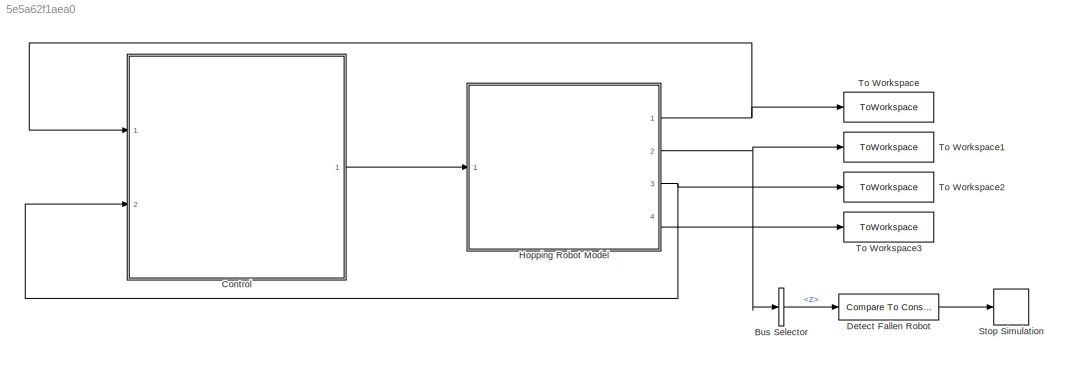
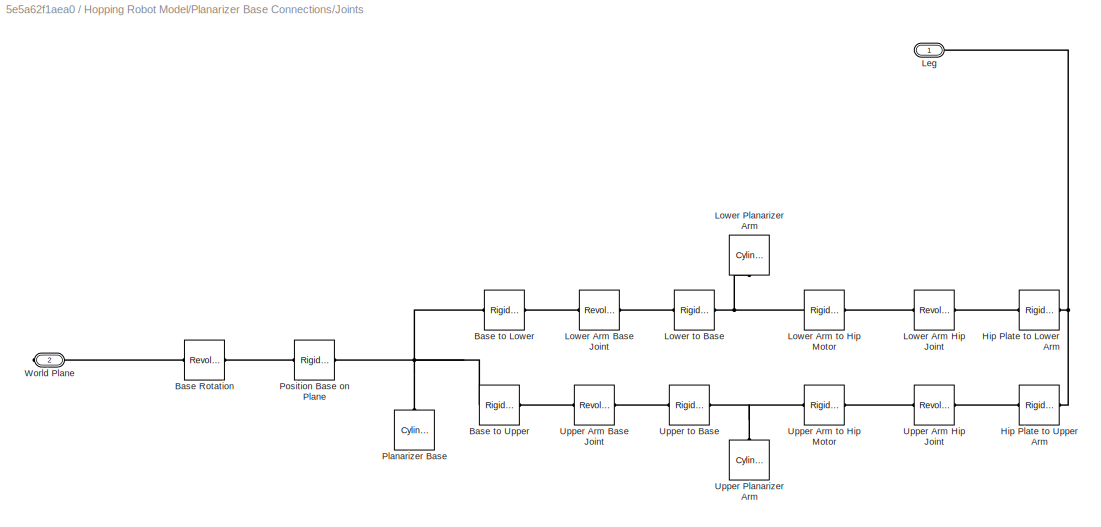
MODEL slx_5e5a62f1aea0
KIND model
CONFIG AbsTol = auto
CONFIG EnableMultiTasking = off
CONFIG FixedStep = auto
CONFIG MaxStep = 1E-5
CONFIG MinStep = auto
CONFIG RelTol = 1e-9
CONFIG SampleTimeConstraint = Unconstrained
CONFIG SolverName = VariableStepAuto
CONFIG StartTime = 0.0
CONFIG StopTime = 3
BLOCK [BusSelector] Bus Selector
  OutputSignals = Z
  Ports = [1, 1]
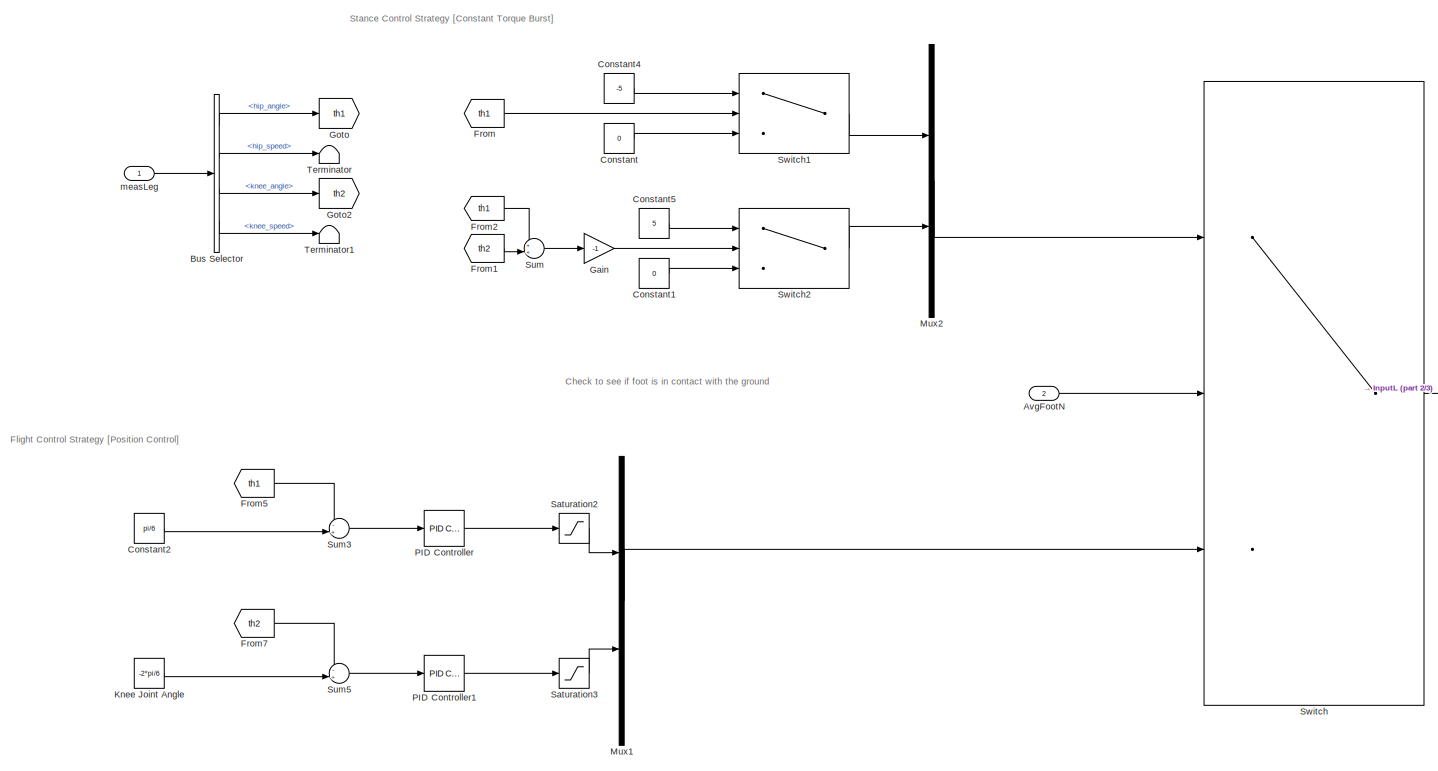
[diagram: Control - part 1/3, center side, full height]
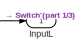
[diagram: Control - part 2/3, middle right region]
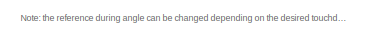
[diagram: Control - part 3/3, bottom left region]
BLOCK [SubSystem] Control
  Ports = [2, 1]
  RequestExecContextInheritance = off
BLOCK [Inport] Control/AvgFootN
  Port = 2
BLOCK [BusSelector] Control/Bus Selector
  OutputSignals = hip_angle,hip_speed,knee_angle,knee_speed
  Ports = [1, 4]
BLOCK [Constant] Control/Constant
  Value = 0
BLOCK [Constant] Control/Constant1
  Value = 0
BLOCK [Constant] Control/Constant2
  Value = pi/6
BLOCK [Constant] Control/Constant4
  Value = -5
BLOCK [Constant] Control/Constant5
  Value = 5
BLOCK [From] Control/From
  GotoTag = th1
BLOCK [From] Control/From1
  GotoTag = th2
BLOCK [From] Control/From2
  GotoTag = th1
BLOCK [From] Control/From5
  GotoTag = th1
BLOCK [From] Control/From7
  GotoTag = th2
BLOCK [Gain] Control/Gain
  Gain = -1
BLOCK [Goto] Control/Goto
  GotoTag = th1
BLOCK [Goto] Control/Goto2
  GotoTag = th2
BLOCK [Outport] Control/InputL
BLOCK [Constant] Control/Knee Joint Angle
  Value = -2*pi/6
BLOCK [Mux] Control/Mux1
  DisplayOption = bar
  Inputs = 2
  Ports = [2, 1]
BLOCK [Mux] Control/Mux2
  DisplayOption = bar
  Inputs = 2
  Ports = [2, 1]
BLOCK [Reference] Control/PID Controller  REF=slpidlib/PID Controller
  Ports = [1, 1]
  SourceBlock = slpidlib/PID Controller
  SourceProductBaseCode = SL
  SourceType = PID 1dof
BLOCK [Reference] Control/PID Controller1  REF=slpidlib/PID Controller
  Ports = [1, 1]
  SourceBlock = slpidlib/PID Controller
  SourceProductBaseCode = SL
  SourceType = PID 1dof
BLOCK [Saturate] Control/Saturation2
  LowerLimit = -5
  UpperLimit = 5
BLOCK [Saturate] Control/Saturation3
  LowerLimit = -5
  UpperLimit = 5
BLOCK [Sum] Control/Sum
  Inputs = ++|
  Ports = [2, 1]
BLOCK [Sum] Control/Sum3
  Inputs = -+|
  Ports = [2, 1]
BLOCK [Sum] Control/Sum5
  Inputs = -+|
  Ports = [2, 1]
BLOCK [Switch] Control/Switch
  Criteria = u2 > Threshold
  InputSameDT = off
  SaturateOnIntegerOverflow = off
BLOCK [Switch] Control/Switch1
  Criteria = u2 > Threshold
  InputSameDT = off
  SaturateOnIntegerOverflow = off
  Threshold = .453
BLOCK [Switch] Control/Switch2
  Criteria = u2 > Threshold
  InputSameDT = off
  SaturateOnIntegerOverflow = off
  Threshold = .453
BLOCK [Terminator] Control/Terminator
BLOCK [Terminator] Control/Terminator1
BLOCK [Inport] Control/measLeg
BLOCK [Reference] Detect Fallen Robot  REF=simulink/Logic and Bit
Operations/Compare
To Constant
  Ports = [1, 1]
  SourceBlock = simulink/Logic and Bit\nOperations/Compare\nTo Constant
  SourceProductBaseCode = SL
  SourceType = Compare To Constant
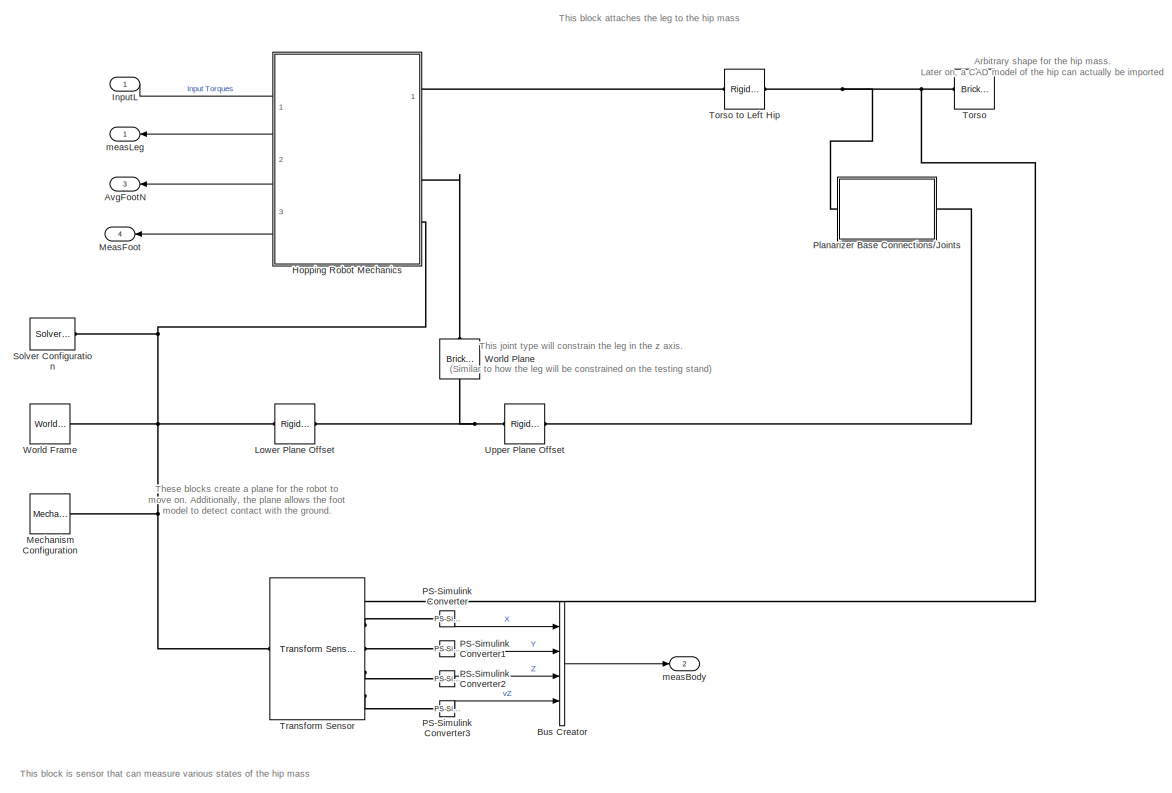
[diagram: Hopping Robot Model - part 1/2, center side, full height]
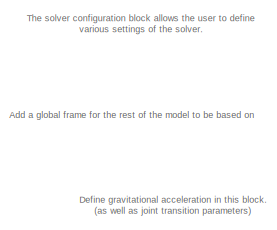
[diagram: Hopping Robot Model - part 2/2, middle left region]
BLOCK [SubSystem] Hopping Robot Model
  Ports = [1, 4]
  RequestExecContextInheritance = off
BLOCK [Outport] Hopping Robot Model/AvgFootN
  Port = 3
BLOCK [BusCreator] Hopping Robot Model/Bus Creator
  DisplayOption = bar
  InheritFromInputs = on
  Inputs = 4
  Ports = [4, 1]
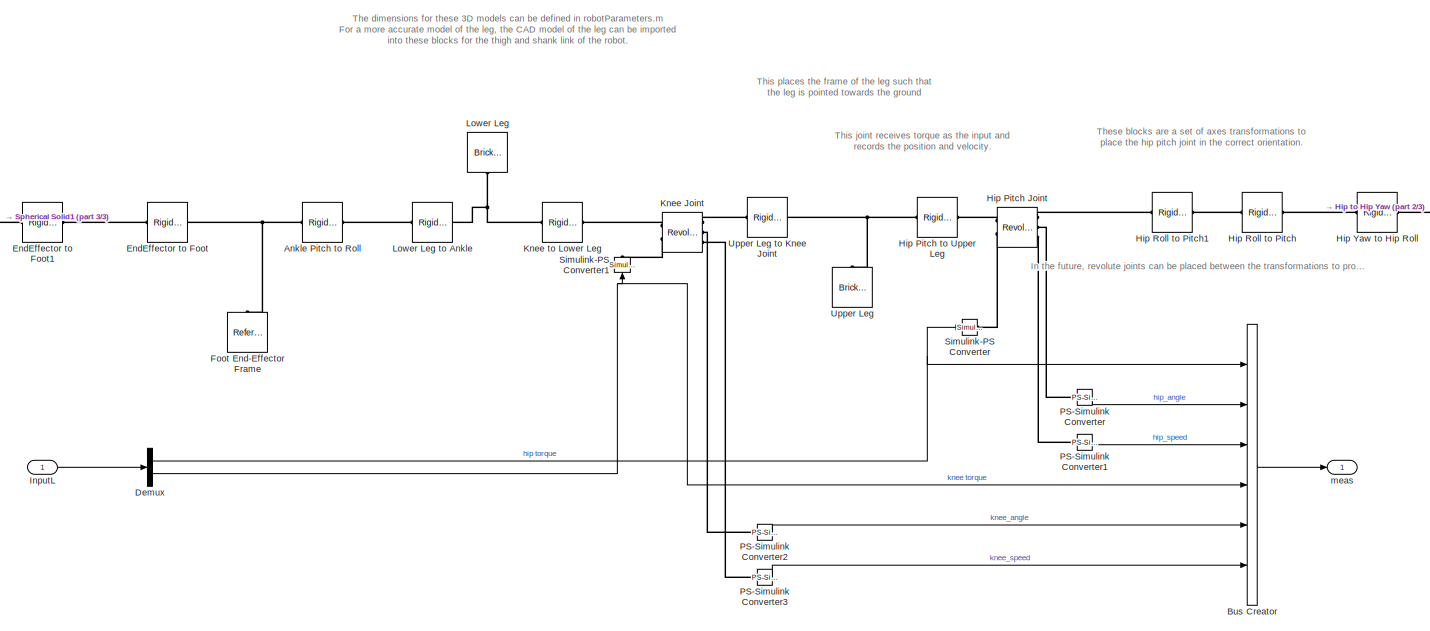
[diagram: Hopping Robot Model/Hopping Robot Mechanics - part 1/3, center side, full height]
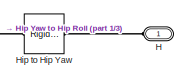
[diagram: Hopping Robot Model/Hopping Robot Mechanics - part 2/3, middle right region]
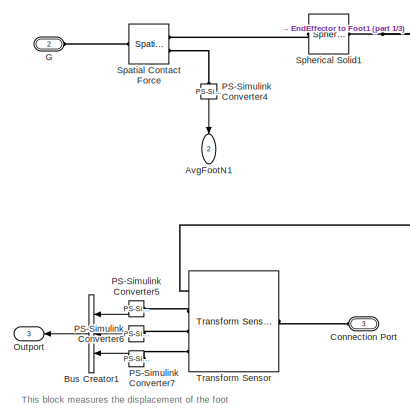
[diagram: Hopping Robot Model/Hopping Robot Mechanics - part 3/3, middle left region]
BLOCK [SubSystem] Hopping Robot Model/Hopping Robot Mechanics
  PortSchema = {"entries":[{"content":{"sides":[{"content":{"connectorIds":["LConn1","LConn2","LConn3"]},"type":"ConnectorPlacement.EquallySpacedRectSide","uuid":"2e35cc04-a060-4e4a-9dbe-9dc1ccd10687"},{"content":{"connectorIds":["In1","Out1","Out2","Out3"],"side":"RIGHT"},"type":"ConnectorPlacement.EquallySpacedRectSide","uuid":"c6bb660b-0b98-4ab9-9025-982c1a13b41d"},{"content":{"connectorIds":[],"side":"TOP"},...<+425ch>
  Ports = [1, 3, 0, 0, 0, 3]
  RequestExecContextInheritance = off
BLOCK [Reference] Hopping Robot Model/Hopping Robot Mechanics/Ankle Pitch to Roll  REF=sm_lib/Frames and
Transforms/Rigid
Transform
  Ports = [0, 0, 0, 0, 0, 1, 1]
  SourceBlock = sm_lib/Frames and\nTransforms/Rigid\nTransform
  SourceProductBaseCode = MS
  SourceType = Rigid\nTransform
BLOCK [Outport] Hopping Robot Model/Hopping Robot Mechanics/AvgFootN1
  NameLocation = left
  Port = 2
BLOCK [BusCreator] Hopping Robot Model/Hopping Robot Mechanics/Bus Creator
  DisplayOption = bar
  InheritFromInputs = on
  Inputs = 6
  Ports = [6, 1]
BLOCK [BusCreator] Hopping Robot Model/Hopping Robot Mechanics/Bus Creator1
  DisplayOption = bar
  InheritFromInputs = on
  Inputs = 3
  NameLocation = top
  Ports = [3, 1]
BLOCK [PMIOPort] Hopping Robot Model/Hopping Robot Mechanics/Connection Port
  NameLocation = top
  Port = 3
  Side = Left
BLOCK [Demux] Hopping Robot Model/Hopping Robot Mechanics/Demux
  Outputs = 2
  Ports = [1, 2]
BLOCK [Reference] Hopping Robot Model/Hopping Robot Mechanics/EndEffector to Foot  REF=sm_lib/Frames and
Transforms/Rigid
Transform
  NameLocation = top
  Ports = [0, 0, 0, 0, 0, 1, 1]
  SourceBlock = sm_lib/Frames and\nTransforms/Rigid\nTransform
  SourceProductBaseCode = MS
  SourceType = Rigid\nTransform
BLOCK [Reference] Hopping Robot Model/Hopping Robot Mechanics/EndEffector to Foot1  REF=sm_lib/Frames and
Transforms/Rigid
Transform
  Ports = [0, 0, 0, 0, 0, 1, 1]
  SourceBlock = sm_lib/Frames and\nTransforms/Rigid\nTransform
  SourceProductBaseCode = MS
  SourceType = Rigid\nTransform
BLOCK [Reference] Hopping Robot Model/Hopping Robot Mechanics/Foot End-Effector Frame  REF=sm_lib/Frames and
Transforms/Reference
Frame
  NameLocation = left
  Ports = [0, 0, 0, 0, 0, 0, 1]
  SourceBlock = sm_lib/Frames and\nTransforms/Reference\nFrame
  SourceProductBaseCode = MS
  SourceType = Reference\nFrame
BLOCK [PMIOPort] Hopping Robot Model/Hopping Robot Mechanics/G
  Port = 2
  Side = Left
BLOCK [PMIOPort] Hopping Robot Model/Hopping Robot Mechanics/H
  Side = Left
BLOCK [Reference] Hopping Robot Model/Hopping Robot Mechanics/Hip Pitch Joint  REF=sm_lib/Joints/Revolute Joint
  Ports = [0, 0, 0, 0, 0, 2, 3]
  SourceBlock = sm_lib/Joints/Revolute Joint
  SourceProductBaseCode = MS
  SourceType = Revolute Joint
BLOCK [Reference] Hopping Robot Model/Hopping Robot Mechanics/Hip Pitch to Upper Leg  REF=sm_lib/Frames and
Transforms/Rigid
Transform
  Ports = [0, 0, 0, 0, 0, 1, 1]
  SourceBlock = sm_lib/Frames and\nTransforms/Rigid\nTransform
  SourceProductBaseCode = MS
  SourceType = Rigid\nTransform
BLOCK [Reference] Hopping Robot Model/Hopping Robot Mechanics/Hip Roll to Pitch  REF=sm_lib/Frames and
Transforms/Rigid
Transform
  Ports = [0, 0, 0, 0, 0, 1, 1]
  SourceBlock = sm_lib/Frames and\nTransforms/Rigid\nTransform
  SourceProductBaseCode = MS
  SourceType = Rigid\nTransform
BLOCK [Reference] Hopping Robot Model/Hopping Robot Mechanics/Hip Roll to Pitch1  REF=sm_lib/Frames and
Transforms/Rigid
Transform
  Ports = [0, 0, 0, 0, 0, 1, 1]
  SourceBlock = sm_lib/Frames and\nTransforms/Rigid\nTransform
  SourceProductBaseCode = MS
  SourceType = Rigid\nTransform
BLOCK [Reference] Hopping Robot Model/Hopping Robot Mechanics/Hip Yaw to Hip Roll  REF=sm_lib/Frames and
Transforms/Rigid
Transform
  Ports = [0, 0, 0, 0, 0, 1, 1]
  SourceBlock = sm_lib/Frames and\nTransforms/Rigid\nTransform
  SourceProductBaseCode = MS
  SourceType = Rigid\nTransform
BLOCK [Reference] Hopping Robot Model/Hopping Robot Mechanics/Hip to Hip Yaw  REF=sm_lib/Frames and
Transforms/Rigid
Transform
  Ports = [0, 0, 0, 0, 0, 1, 1]
  SourceBlock = sm_lib/Frames and\nTransforms/Rigid\nTransform
  SourceProductBaseCode = MS
  SourceType = Rigid\nTransform
BLOCK [Inport] Hopping Robot Model/Hopping Robot Mechanics/InputL
BLOCK [Reference] Hopping Robot Model/Hopping Robot Mechanics/Knee Joint  REF=sm_lib/Joints/Revolute Joint
  Ports = [0, 0, 0, 0, 0, 2, 3]
  SourceBlock = sm_lib/Joints/Revolute Joint
  SourceProductBaseCode = MS
  SourceType = Revolute Joint
BLOCK [Reference] Hopping Robot Model/Hopping Robot Mechanics/Knee to Lower Leg  REF=sm_lib/Frames and
Transforms/Rigid
Transform
  NameLocation = top
  Ports = [0, 0, 0, 0, 0, 1, 1]
  SourceBlock = sm_lib/Frames and\nTransforms/Rigid\nTransform
  SourceProductBaseCode = MS
  SourceType = Rigid\nTransform
BLOCK [Reference] Hopping Robot Model/Hopping Robot Mechanics/Lower Leg  REF=sm_lib/Body Elements/Brick Solid
  NameLocation = left
  Ports = [0, 0, 0, 0, 0, 0, 1]
  SourceBlock = sm_lib/Body Elements/Brick Solid
  SourceProductBaseCode = MS
  SourceType = Brick Solid
BLOCK [Reference] Hopping Robot Model/Hopping Robot Mechanics/Lower Leg to Ankle  REF=sm_lib/Frames and
Transforms/Rigid
Transform
  NameLocation = top
  Ports = [0, 0, 0, 0, 0, 1, 1]
  SourceBlock = sm_lib/Frames and\nTransforms/Rigid\nTransform
  SourceProductBaseCode = MS
  SourceType = Rigid\nTransform
BLOCK [Outport] Hopping Robot Model/Hopping Robot Mechanics/Outport
  NameLocation = top
  Port = 3
BLOCK [Reference] Hopping Robot Model/Hopping Robot Mechanics/PS-Simulink Converter  REF=nesl_utility/PS-Simulink
Converter
  Ports = [0, 1, 0, 0, 0, 1]
  SourceBlock = nesl_utility/PS-Simulink\nConverter
  SourceProductBaseCode = SS,PW,VE
  SourceType = PS-Simulink\nConverter
BLOCK [Reference] Hopping Robot Model/Hopping Robot Mechanics/PS-Simulink Converter1  REF=nesl_utility/PS-Simulink
Converter
  Ports = [0, 1, 0, 0, 0, 1]
  SourceBlock = nesl_utility/PS-Simulink\nConverter
  SourceProductBaseCode = SS,PW,VE
  SourceType = PS-Simulink\nConverter
BLOCK [Reference] Hopping Robot Model/Hopping Robot Mechanics/PS-Simulink Converter2  REF=nesl_utility/PS-Simulink
Converter
  Ports = [0, 1, 0, 0, 0, 1]
  SourceBlock = nesl_utility/PS-Simulink\nConverter
  SourceProductBaseCode = SS,PW,VE
  SourceType = PS-Simulink\nConverter
BLOCK [Reference] Hopping Robot Model/Hopping Robot Mechanics/PS-Simulink Converter3  REF=nesl_utility/PS-Simulink
Converter
  Ports = [0, 1, 0, 0, 0, 1]
  SourceBlock = nesl_utility/PS-Simulink\nConverter
  SourceProductBaseCode = SS,PW,VE
  SourceType = PS-Simulink\nConverter
BLOCK [Reference] Hopping Robot Model/Hopping Robot Mechanics/PS-Simulink Converter4  REF=nesl_utility/PS-Simulink
Converter
  NameLocation = left
  Ports = [0, 1, 0, 0, 0, 1]
  SourceBlock = nesl_utility/PS-Simulink\nConverter
  SourceProductBaseCode = SS,PW,VE
  SourceType = PS-Simulink\nConverter
BLOCK [Reference] Hopping Robot Model/Hopping Robot Mechanics/PS-Simulink Converter5  REF=nesl_utility/PS-Simulink
Converter
  NameLocation = top
  Ports = [0, 1, 0, 0, 0, 1]
  SourceBlock = nesl_utility/PS-Simulink\nConverter
  SourceProductBaseCode = SS,PW,VE
  SourceType = PS-Simulink\nConverter
BLOCK [Reference] Hopping Robot Model/Hopping Robot Mechanics/PS-Simulink Converter6  REF=nesl_utility/PS-Simulink
Converter
  NameLocation = top
  Ports = [0, 1, 0, 0, 0, 1]
  SourceBlock = nesl_utility/PS-Simulink\nConverter
  SourceProductBaseCode = SS,PW,VE
  SourceType = PS-Simulink\nConverter
BLOCK [Reference] Hopping Robot Model/Hopping Robot Mechanics/PS-Simulink Converter7  REF=nesl_utility/PS-Simulink
Converter
  NameLocation = top
  Ports = [0, 1, 0, 0, 0, 1]
  SourceBlock = nesl_utility/PS-Simulink\nConverter
  SourceProductBaseCode = SS,PW,VE
  SourceType = PS-Simulink\nConverter
BLOCK [Reference] Hopping Robot Model/Hopping Robot Mechanics/Simulink-PS Converter  REF=nesl_utility/Simulink-PS
Converter
  Ports = [1, 0, 0, 0, 0, 0, 1]
  SourceBlock = nesl_utility/Simulink-PS\nConverter
  SourceProductBaseCode = SS,PW,VE
  SourceType = Simulink-PS\nConverter
BLOCK [Reference] Hopping Robot Model/Hopping Robot Mechanics/Simulink-PS Converter1  REF=nesl_utility/Simulink-PS
Converter
  NameLocation = right
  Ports = [1, 0, 0, 0, 0, 0, 1]
  SourceBlock = nesl_utility/Simulink-PS\nConverter
  SourceProductBaseCode = SS,PW,VE
  SourceType = Simulink-PS\nConverter
BLOCK [Reference] Hopping Robot Model/Hopping Robot Mechanics/Spatial Contact Force  REF=sm_lib/Forces and
Torques/Spatial
Contact Force
  Ports = [0, 0, 0, 0, 0, 1, 2]
  SourceBlock = sm_lib/Forces and\nTorques/Spatial\nContact Force
  SourceProductBaseCode = MS
  SourceType = Spatial\nContact Force
BLOCK [Reference] Hopping Robot Model/Hopping Robot Mechanics/Spherical Solid1  REF=sm_lib/Body Elements/Spherical Solid
  Ports = [0, 0, 0, 0, 0, 1, 1]
  SourceBlock = sm_lib/Body Elements/Spherical Solid
  SourceProductBaseCode = MS
  SourceType = Spherical Solid
BLOCK [Reference] Hopping Robot Model/Hopping Robot Mechanics/Transform Sensor  REF=sm_lib/Frames and
Transforms/Transform
Sensor
  NameLocation = top
  Ports = [0, 0, 0, 0, 0, 1, 4]
  SourceBlock = sm_lib/Frames and\nTransforms/Transform\nSensor
  SourceProductBaseCode = MS
  SourceType = Transform\nSensor
BLOCK [Reference] Hopping Robot Model/Hopping Robot Mechanics/Upper Leg  REF=sm_lib/Body Elements/Brick Solid
  NameLocation = right
  Ports = [0, 0, 0, 0, 0, 0, 1]
  SourceBlock = sm_lib/Body Elements/Brick Solid
  SourceProductBaseCode = MS
  SourceType = Brick Solid
BLOCK [Reference] Hopping Robot Model/Hopping Robot Mechanics/Upper Leg to Knee Joint  REF=sm_lib/Frames and
Transforms/Rigid
Transform
  NameLocation = top
  Ports = [0, 0, 0, 0, 0, 1, 1]
  SourceBlock = sm_lib/Frames and\nTransforms/Rigid\nTransform
  SourceProductBaseCode = MS
  SourceType = Rigid\nTransform
BLOCK [Outport] Hopping Robot Model/Hopping Robot Mechanics/meas
BLOCK [Inport] Hopping Robot Model/InputL
BLOCK [Reference] Hopping Robot Model/Lower Plane Offset  REF=sm_lib/Frames and
Transforms/Rigid
Transform
  Ports = [0, 0, 0, 0, 0, 1, 1]
  SourceBlock = sm_lib/Frames and\nTransforms/Rigid\nTransform
  SourceProductBaseCode = MS
  SourceType = Rigid\nTransform
BLOCK [Outport] Hopping Robot Model/MeasFoot
  NameLocation = top
  Port = 4
BLOCK [Reference] Hopping Robot Model/Mechanism Configuration  REF=sm_lib/Utilities/Mechanism
Configuration
  Ports = [0, 0, 0, 0, 0, 0, 1]
  SourceBlock = sm_lib/Utilities/Mechanism\nConfiguration
  SourceProductBaseCode = MS
  SourceType = Mechanism\nConfiguration
BLOCK [Reference] Hopping Robot Model/PS-Simulink Converter  REF=nesl_utility/PS-Simulink
Converter
  Ports = [0, 1, 0, 0, 0, 1]
  SourceBlock = nesl_utility/PS-Simulink\nConverter
  SourceProductBaseCode = SS,PW,VE
  SourceType = PS-Simulink\nConverter
BLOCK [Reference] Hopping Robot Model/PS-Simulink Converter1  REF=nesl_utility/PS-Simulink
Converter
  Ports = [0, 1, 0, 0, 0, 1]
  SourceBlock = nesl_utility/PS-Simulink\nConverter
  SourceProductBaseCode = SS,PW,VE
  SourceType = PS-Simulink\nConverter
BLOCK [Reference] Hopping Robot Model/PS-Simulink Converter2  REF=nesl_utility/PS-Simulink
Converter
  Ports = [0, 1, 0, 0, 0, 1]
  SourceBlock = nesl_utility/PS-Simulink\nConverter
  SourceProductBaseCode = SS,PW,VE
  SourceType = PS-Simulink\nConverter
BLOCK [Reference] Hopping Robot Model/PS-Simulink Converter3  REF=nesl_utility/PS-Simulink
Converter
  Ports = [0, 1, 0, 0, 0, 1]
  SourceBlock = nesl_utility/PS-Simulink\nConverter
  SourceProductBaseCode = SS,PW,VE
  SourceType = PS-Simulink\nConverter
BLOCK [SubSystem] Hopping Robot Model/Planarizer Base Connections//Joints
  Ports = [0, 0, 0, 0, 0, 1, 1]
  RequestExecContextInheritance = off
BLOCK [Reference] Hopping Robot Model/Planarizer Base Connections//Joints/Base Rotation  REF=sm_lib/Joints/Revolute Joint
  NameLocation = top
  Ports = [0, 0, 0, 0, 0, 1, 1]
  SourceBlock = sm_lib/Joints/Revolute Joint
  SourceProductBaseCode = MS
  SourceType = Revolute Joint
BLOCK [Reference] Hopping Robot Model/Planarizer Base Connections//Joints/Base to Lower  REF=sm_lib/Frames and
Transforms/Rigid
Transform
  Ports = [0, 0, 0, 0, 0, 1, 1]
  SourceBlock = sm_lib/Frames and\nTransforms/Rigid\nTransform
  SourceProductBaseCode = MS
  SourceType = Rigid\nTransform
BLOCK [Reference] Hopping Robot Model/Planarizer Base Connections//Joints/Base to Upper  REF=sm_lib/Frames and
Transforms/Rigid
Transform
  Ports = [0, 0, 0, 0, 0, 1, 1]
  SourceBlock = sm_lib/Frames and\nTransforms/Rigid\nTransform
  SourceProductBaseCode = MS
  SourceType = Rigid\nTransform
BLOCK [Reference] Hopping Robot Model/Planarizer Base Connections//Joints/Hip Plate to Lower Arm  REF=sm_lib/Frames and
Transforms/Rigid
Transform
  Ports = [0, 0, 0, 0, 0, 1, 1]
  SourceBlock = sm_lib/Frames and\nTransforms/Rigid\nTransform
  SourceProductBaseCode = MS
  SourceType = Rigid\nTransform
BLOCK [Reference] Hopping Robot Model/Planarizer Base Connections//Joints/Hip Plate to Upper Arm  REF=sm_lib/Frames and
Transforms/Rigid
Transform
  Ports = [0, 0, 0, 0, 0, 1, 1]
  SourceBlock = sm_lib/Frames and\nTransforms/Rigid\nTransform
  SourceProductBaseCode = MS
  SourceType = Rigid\nTransform
BLOCK [PMIOPort] Hopping Robot Model/Planarizer Base Connections//Joints/Leg
  Side = Left
BLOCK [Reference] Hopping Robot Model/Planarizer Base Connections//Joints/Lower Arm Base Joint  REF=sm_lib/Joints/Revolute Joint
  Ports = [0, 0, 0, 0, 0, 1, 1]
  SourceBlock = sm_lib/Joints/Revolute Joint
  SourceProductBaseCode = MS
  SourceType = Revolute Joint
BLOCK [Reference] Hopping Robot Model/Planarizer Base Connections//Joints/Lower Arm Hip Joint  REF=sm_lib/Joints/Revolute Joint
  Ports = [0, 0, 0, 0, 0, 1, 1]
  SourceBlock = sm_lib/Joints/Revolute Joint
  SourceProductBaseCode = MS
  SourceType = Revolute Joint
BLOCK [Reference] Hopping Robot Model/Planarizer Base Connections//Joints/Lower Arm to Hip Motor  REF=sm_lib/Frames and
Transforms/Rigid
Transform
  Ports = [0, 0, 0, 0, 0, 1, 1]
  SourceBlock = sm_lib/Frames and\nTransforms/Rigid\nTransform
  SourceProductBaseCode = MS
  SourceType = Rigid\nTransform
BLOCK [Reference] Hopping Robot Model/Planarizer Base Connections//Joints/Lower Planarizer Arm  REF=sm_lib/Body Elements/Cylindrical Solid
  NameLocation = left
  Ports = [0, 0, 0, 0, 0, 0, 1]
  SourceBlock = sm_lib/Body Elements/Cylindrical Solid
  SourceProductBaseCode = MS
  SourceType = Cylindrical Solid
BLOCK [Reference] Hopping Robot Model/Planarizer Base Connections//Joints/Lower to Base  REF=sm_lib/Frames and
Transforms/Rigid
Transform
  Ports = [0, 0, 0, 0, 0, 1, 1]
  SourceBlock = sm_lib/Frames and\nTransforms/Rigid\nTransform
  SourceProductBaseCode = MS
  SourceType = Rigid\nTransform
BLOCK [Reference] Hopping Robot Model/Planarizer Base Connections//Joints/Planarizer Base  REF=sm_lib/Body Elements/Cylindrical Solid
  NameLocation = left
  Ports = [0, 0, 0, 0, 0, 0, 1]
  SourceBlock = sm_lib/Body Elements/Cylindrical Solid
  SourceProductBaseCode = MS
  SourceType = Cylindrical Solid
BLOCK [Reference] Hopping Robot Model/Planarizer Base Connections//Joints/Position Base on Plane  REF=sm_lib/Frames and
Transforms/Rigid
Transform
  Ports = [0, 0, 0, 0, 0, 1, 1]
  SourceBlock = sm_lib/Frames and\nTransforms/Rigid\nTransform
  SourceProductBaseCode = MS
  SourceType = Rigid\nTransform
BLOCK [Reference] Hopping Robot Model/Planarizer Base Connections//Joints/Upper Arm Base Joint  REF=sm_lib/Joints/Revolute Joint
  Ports = [0, 0, 0, 0, 0, 1, 1]
  SourceBlock = sm_lib/Joints/Revolute Joint
  SourceProductBaseCode = MS
  SourceType = Revolute Joint
BLOCK [Reference] Hopping Robot Model/Planarizer Base Connections//Joints/Upper Arm Hip Joint  REF=sm_lib/Joints/Revolute Joint
  Ports = [0, 0, 0, 0, 0, 1, 1]
  SourceBlock = sm_lib/Joints/Revolute Joint
  SourceProductBaseCode = MS
  SourceType = Revolute Joint
BLOCK [Reference] Hopping Robot Model/Planarizer Base Connections//Joints/Upper Arm to Hip Motor  REF=sm_lib/Frames and
Transforms/Rigid
Transform
  Ports = [0, 0, 0, 0, 0, 1, 1]
  SourceBlock = sm_lib/Frames and\nTransforms/Rigid\nTransform
  SourceProductBaseCode = MS
  SourceType = Rigid\nTransform
BLOCK [Reference] Hopping Robot Model/Planarizer Base Connections//Joints/Upper Planarizer Arm  REF=sm_lib/Body Elements/Cylindrical Solid
  NameLocation = left
  Ports = [0, 0, 0, 0, 0, 0, 1]
  SourceBlock = sm_lib/Body Elements/Cylindrical Solid
  SourceProductBaseCode = MS
  SourceType = Cylindrical Solid
BLOCK [Reference] Hopping Robot Model/Planarizer Base Connections//Joints/Upper to Base  REF=sm_lib/Frames and
Transforms/Rigid
Transform
  Ports = [0, 0, 0, 0, 0, 1, 1]
  SourceBlock = sm_lib/Frames and\nTransforms/Rigid\nTransform
  SourceProductBaseCode = MS
  SourceType = Rigid\nTransform
BLOCK [PMIOPort] Hopping Robot Model/Planarizer Base Connections//Joints/World Plane
  Port = 2
  Side = Right
BLOCK [Reference] Hopping Robot Model/Solver Configuration  REF=nesl_utility/Solver
Configuration
  Ports = [0, 0, 0, 0, 0, 0, 1]
  SourceBlock = nesl_utility/Solver\nConfiguration
  SourceProductBaseCode = SS,PW,VE
  SourceType = Solver\nConfiguration
BLOCK [Reference] Hopping Robot Model/Torso  REF=sm_lib/Body Elements/Brick Solid
  Ports = [0, 0, 0, 0, 0, 0, 1]
  SourceBlock = sm_lib/Body Elements/Brick Solid
  SourceProductBaseCode = MS
  SourceType = Brick Solid
BLOCK [Reference] Hopping Robot Model/Torso to Left Hip  REF=sm_lib/Frames and
Transforms/Rigid
Transform
  Ports = [0, 0, 0, 0, 0, 1, 1]
  SourceBlock = sm_lib/Frames and\nTransforms/Rigid\nTransform
  SourceProductBaseCode = MS
  SourceType = Rigid\nTransform
BLOCK [Reference] Hopping Robot Model/Transform Sensor  REF=sm_lib/Frames and
Transforms/Transform
Sensor
  Ports = [0, 0, 0, 0, 0, 1, 5]
  SourceBlock = sm_lib/Frames and\nTransforms/Transform\nSensor
  SourceProductBaseCode = MS
  SourceType = Transform\nSensor
BLOCK [Reference] Hopping Robot Model/Upper Plane Offset  REF=sm_lib/Frames and
Transforms/Rigid
Transform
  Ports = [0, 0, 0, 0, 0, 1, 1]
  SourceBlock = sm_lib/Frames and\nTransforms/Rigid\nTransform
  SourceProductBaseCode = MS
  SourceType = Rigid\nTransform
BLOCK [Reference] Hopping Robot Model/World Frame  REF=sm_lib/Frames and
Transforms/World Frame
  Ports = [0, 0, 0, 0, 0, 0, 1]
  SourceBlock = sm_lib/Frames and\nTransforms/World Frame
  SourceProductBaseCode = MS
  SourceType = World Frame
BLOCK [Reference] Hopping Robot Model/World Plane  REF=sm_lib/Body Elements/Brick Solid
  NameLocation = right
  Ports = [0, 0, 0, 0, 0, 1, 1]
  SourceBlock = sm_lib/Body Elements/Brick Solid
  SourceProductBaseCode = MS
  SourceType = Brick Solid
BLOCK [Outport] Hopping Robot Model/measBody
  Port = 2
BLOCK [Outport] Hopping Robot Model/measLeg
BLOCK [Stop] Stop Simulation
BLOCK [ToWorkspace] To Workspace
  FixptAsFi = on
  MaxDataPoints = inf
  Ports = [1]
  SampleTime = -1
  VariableName = measLeg
BLOCK [ToWorkspace] To Workspace1
  FixptAsFi = on
  MaxDataPoints = inf
  Ports = [1]
  SampleTime = -1
  VariableName = measBody
BLOCK [ToWorkspace] To Workspace2
  FixptAsFi = on
  MaxDataPoints = inf
  Ports = [1]
  SampleTime = -1
  VariableName = GRF
BLOCK [ToWorkspace] To Workspace3
  FixptAsFi = on
  MaxDataPoints = inf
  Ports = [1]
  SampleTime = -1
  VariableName = measFoot
ANNOTATION Control: Check to see if foot is in contact with the ground
ANNOTATION Control: Note: the reference during angle can be changed depending on the desired touchdown orientation
ANNOTATION Control: Flight Control Strategy [Position Control]
ANNOTATION Control: Stance Control Strategy [Constant Torque Burst]
ANNOTATION Hopping Robot Model: These blocks create a plane for the robot to move on. Additionally, the plane allows the foot model to detect contact with the ground.
ANNOTATION Hopping Robot Model: Add a global frame for the rest of the model to be based on
ANNOTATION Hopping Robot Model: Arbitrary shape for the hip mass. Later on, a CAD model of the hip can actually be imported
ANNOTATION Hopping Robot Model: Define gravitational acceleration in this block. (as well as joint transition parameters)
ANNOTATION Hopping Robot Model: The solver configuration block allows the user to define various settings of the solver.
ANNOTATION Hopping Robot Model: This block attaches the leg to the hip mass
ANNOTATION Hopping Robot Model: This block is sensor that can measure various states of the hip mass
ANNOTATION Hopping Robot Model: This joint type will constrain the leg in the z axis. (Similar to how the leg will be constrained on the testing stand)
ANNOTATION Hopping Robot Model/Hopping Robot Mechanics: In the future, revolute joints can be placed between the transformations to provide more degrees of freedom.
ANNOTATION Hopping Robot Model/Hopping Robot Mechanics: The dimensions for these 3D models can be defined in robotParameters.m For a more accurate model of the leg, the CAD model of the leg can be imported into these blocks for the thigh and shank link of the robot.
ANNOTATION Hopping Robot Model/Hopping Robot Mechanics: These blocks are a set of axes transformations to place the hip pitch joint in the correct orientation.
ANNOTATION Hopping Robot Model/Hopping Robot Mechanics: This block measures the displacement of the foot
ANNOTATION Hopping Robot Model/Hopping Robot Mechanics: This joint receives torque as the input and records the position and velocity.
ANNOTATION Hopping Robot Model/Hopping Robot Mechanics: This places the frame of the leg such that the leg is pointed towards the ground
LINE Bus Selector:1 -> Detect Fallen Robot:1
LINE Control/AvgFootN:1 -> Control/Switch:2
LINE Control/Bus Selector:1 -> Control/Goto:1
LINE Control/Bus Selector:2 -> Control/Terminator:1
LINE Control/Bus Selector:3 -> Control/Goto2:1
LINE Control/Bus Selector:4 -> Control/Terminator1:1
LINE Control/Constant1:1 -> Control/Switch2:3
LINE Control/Constant2:1 -> Control/Sum3:2
LINE Control/Constant4:1 -> Control/Switch1:1
LINE Control/Constant5:1 -> Control/Switch2:1
LINE Control/Constant:1 -> Control/Switch1:3
LINE Control/From1:1 -> Control/Sum:2
LINE Control/From2:1 -> Control/Sum:1
LINE Control/From5:1 -> Control/Sum3:1
LINE Control/From7:1 -> Control/Sum5:1
LINE Control/From:1 -> Control/Switch1:2
LINE Control/Gain:1 -> Control/Switch2:2
LINE Control/Knee Joint Angle:1 -> Control/Sum5:2
LINE Control/Mux1:1 -> Control/Switch:3
LINE Control/Mux2:1 -> Control/Switch:1
LINE Control/PID Controller1:1 -> Control/Saturation3:1
LINE Control/PID Controller:1 -> Control/Saturation2:1
LINE Control/Saturation2:1 -> Control/Mux1:1
LINE Control/Saturation3:1 -> Control/Mux1:2
LINE Control/Sum3:1 -> Control/PID Controller:1
LINE Control/Sum5:1 -> Control/PID Controller1:1
LINE Control/Sum:1 -> Control/Gain:1
LINE Control/Switch1:1 -> Control/Mux2:1
LINE Control/Switch2:1 -> Control/Mux2:2
LINE Control/Switch:1 -> Control/InputL:1
LINE Control/measLeg:1 -> Control/Bus Selector:1
LINE Control:1 -> Hopping Robot Model:1
LINE Detect Fallen Robot:1 -> Stop Simulation:1
LINE Hopping Robot Model/Bus Creator:1 -> Hopping Robot Model/measBody:1
LINE Hopping Robot Model/Hopping Robot Mechanics/Bus Creator1:1 -> Hopping Robot Model/Hopping Robot Mechanics/Outport:1
LINE Hopping Robot Model/Hopping Robot Mechanics/Bus Creator:1 -> Hopping Robot Model/Hopping Robot Mechanics/meas:1
NET Hopping Robot Model/Hopping Robot Mechanics/Demux:1 -> Hopping Robot Model/Hopping Robot Mechanics/Bus Creator:1, Hopping Robot Model/Hopping Robot Mechanics/Simulink-PS Converter:1
NET Hopping Robot Model/Hopping Robot Mechanics/Demux:2 -> Hopping Robot Model/Hopping Robot Mechanics/Bus Creator:4, Hopping Robot Model/Hopping Robot Mechanics/Simulink-PS Converter1:1
LINE Hopping Robot Model/Hopping Robot Mechanics/InputL:1 -> Hopping Robot Model/Hopping Robot Mechanics/Demux:1
LINE Hopping Robot Model/Hopping Robot Mechanics/PS-Simulink Converter1:1 -> Hopping Robot Model/Hopping Robot Mechanics/Bus Creator:3
LINE Hopping Robot Model/Hopping Robot Mechanics/PS-Simulink Converter2:1 -> Hopping Robot Model/Hopping Robot Mechanics/Bus Creator:5
LINE Hopping Robot Model/Hopping Robot Mechanics/PS-Simulink Converter3:1 -> Hopping Robot Model/Hopping Robot Mechanics/Bus Creator:6
LINE Hopping Robot Model/Hopping Robot Mechanics/PS-Simulink Converter4:1 -> Hopping Robot Model/Hopping Robot Mechanics/AvgFootN1:1
LINE Hopping Robot Model/Hopping Robot Mechanics/PS-Simulink Converter5:1 -> Hopping Robot Model/Hopping Robot Mechanics/Bus Creator1:1
LINE Hopping Robot Model/Hopping Robot Mechanics/PS-Simulink Converter6:1 -> Hopping Robot Model/Hopping Robot Mechanics/Bus Creator1:2
LINE Hopping Robot Model/Hopping Robot Mechanics/PS-Simulink Converter7:1 -> Hopping Robot Model/Hopping Robot Mechanics/Bus Creator1:3
LINE Hopping Robot Model/Hopping Robot Mechanics/PS-Simulink Converter:1 -> Hopping Robot Model/Hopping Robot Mechanics/Bus Creator:2
LINE Hopping Robot Model/Hopping Robot Mechanics:1 -> Hopping Robot Model/measLeg:1
LINE Hopping Robot Model/Hopping Robot Mechanics:2 -> Hopping Robot Model/AvgFootN:1
LINE Hopping Robot Model/Hopping Robot Mechanics:3 -> Hopping Robot Model/MeasFoot:1
LINE Hopping Robot Model/InputL:1 -> Hopping Robot Model/Hopping Robot Mechanics:1
LINE Hopping Robot Model/PS-Simulink Converter1:1 -> Hopping Robot Model/Bus Creator:2
LINE Hopping Robot Model/PS-Simulink Converter2:1 -> Hopping Robot Model/Bus Creator:3
LINE Hopping Robot Model/PS-Simulink Converter3:1 -> Hopping Robot Model/Bus Creator:4
LINE Hopping Robot Model/PS-Simulink Converter:1 -> Hopping Robot Model/Bus Creator:1
NET Hopping Robot Model:1 -> Control:1, To Workspace:1
NET Hopping Robot Model:2 -> Bus Selector:1, To Workspace1:1
NET Hopping Robot Model:3 -> Control:2, To Workspace2:1
LINE Hopping Robot Model:4 -> To Workspace3:1
PLINE Hopping Robot Model/Hopping Robot Mechanics/Ankle Pitch to Roll:LConn1 -- Hopping Robot Model/Hopping Robot Mechanics/Lower Leg to Ankle:RConn1
PNET net1: Hopping Robot Model/Hopping Robot Mechanics/Ankle Pitch to Roll:RConn1 -- Hopping Robot Model/Hopping Robot Mechanics/EndEffector to Foot:LConn1 -- Hopping Robot Model/Hopping Robot Mechanics/Foot End-Effector Frame:RConn1
PLINE Hopping Robot Model/Hopping Robot Mechanics/Connection Port:RConn1 -- Hopping Robot Model/Hopping Robot Mechanics/Transform Sensor:LConn1
PLINE Hopping Robot Model/Hopping Robot Mechanics/EndEffector to Foot1:LConn1 -- Hopping Robot Model/Hopping Robot Mechanics/EndEffector to Foot:RConn1
PNET net2: Hopping Robot Model/Hopping Robot Mechanics/EndEffector to Foot1:RConn1 -- Hopping Robot Model/Hopping Robot Mechanics/Spherical Solid1:RConn1 -- Hopping Robot Model/Hopping Robot Mechanics/Transform Sensor:RConn1
PLINE Hopping Robot Model/Hopping Robot Mechanics/G:RConn1 -- Hopping Robot Model/Hopping Robot Mechanics/Spatial Contact Force:LConn1
PLINE Hopping Robot Model/Hopping Robot Mechanics/H:RConn1 -- Hopping Robot Model/Hopping Robot Mechanics/Hip to Hip Yaw:LConn1
PLINE Hopping Robot Model/Hopping Robot Mechanics/Hip Pitch Joint:LConn1 -- Hopping Robot Model/Hopping Robot Mechanics/Hip Pitch to Upper Leg:LConn1
PLINE Hopping Robot Model/Hopping Robot Mechanics/Hip Pitch Joint:LConn2 -- Hopping Robot Model/Hopping Robot Mechanics/Simulink-PS Converter:RConn1
PLINE Hopping Robot Model/Hopping Robot Mechanics/Hip Pitch Joint:RConn1 -- Hopping Robot Model/Hopping Robot Mechanics/Hip Roll to Pitch1:RConn1
PLINE Hopping Robot Model/Hopping Robot Mechanics/Hip Pitch Joint:RConn2 -- Hopping Robot Model/Hopping Robot Mechanics/PS-Simulink Converter:LConn1
PLINE Hopping Robot Model/Hopping Robot Mechanics/Hip Pitch Joint:RConn3 -- Hopping Robot Model/Hopping Robot Mechanics/PS-Simulink Converter1:LConn1
PNET net3: Hopping Robot Model/Hopping Robot Mechanics/Hip Pitch to Upper Leg:RConn1 -- Hopping Robot Model/Hopping Robot Mechanics/Upper Leg to Knee Joint:LConn1 -- Hopping Robot Model/Hopping Robot Mechanics/Upper Leg:RConn1
PLINE Hopping Robot Model/Hopping Robot Mechanics/Hip Roll to Pitch1:LConn1 -- Hopping Robot Model/Hopping Robot Mechanics/Hip Roll to Pitch:RConn1
PLINE Hopping Robot Model/Hopping Robot Mechanics/Hip Roll to Pitch:LConn1 -- Hopping Robot Model/Hopping Robot Mechanics/Hip Yaw to Hip Roll:RConn1
PLINE Hopping Robot Model/Hopping Robot Mechanics/Hip Yaw to Hip Roll:LConn1 -- Hopping Robot Model/Hopping Robot Mechanics/Hip to Hip Yaw:RConn1
PLINE Hopping Robot Model/Hopping Robot Mechanics/Knee Joint:LConn1 -- Hopping Robot Model/Hopping Robot Mechanics/Knee to Lower Leg:LConn1
PLINE Hopping Robot Model/Hopping Robot Mechanics/Knee Joint:LConn2 -- Hopping Robot Model/Hopping Robot Mechanics/Simulink-PS Converter1:RConn1
PLINE Hopping Robot Model/Hopping Robot Mechanics/Knee Joint:RConn1 -- Hopping Robot Model/Hopping Robot Mechanics/Upper Leg to Knee Joint:RConn1
PLINE Hopping Robot Model/Hopping Robot Mechanics/Knee Joint:RConn2 -- Hopping Robot Model/Hopping Robot Mechanics/PS-Simulink Converter2:LConn1
PLINE Hopping Robot Model/Hopping Robot Mechanics/Knee Joint:RConn3 -- Hopping Robot Model/Hopping Robot Mechanics/PS-Simulink Converter3:LConn1
PNET net4: Hopping Robot Model/Hopping Robot Mechanics/Knee to Lower Leg:RConn1 -- Hopping Robot Model/Hopping Robot Mechanics/Lower Leg to Ankle:LConn1 -- Hopping Robot Model/Hopping Robot Mechanics/Lower Leg:RConn1
PLINE Hopping Robot Model/Hopping Robot Mechanics/PS-Simulink Converter4:LConn1 -- Hopping Robot Model/Hopping Robot Mechanics/Spatial Contact Force:RConn2
PLINE Hopping Robot Model/Hopping Robot Mechanics/PS-Simulink Converter5:LConn1 -- Hopping Robot Model/Hopping Robot Mechanics/Transform Sensor:RConn2
PLINE Hopping Robot Model/Hopping Robot Mechanics/PS-Simulink Converter6:LConn1 -- Hopping Robot Model/Hopping Robot Mechanics/Transform Sensor:RConn3
PLINE Hopping Robot Model/Hopping Robot Mechanics/PS-Simulink Converter7:LConn1 -- Hopping Robot Model/Hopping Robot Mechanics/Transform Sensor:RConn4
PLINE Hopping Robot Model/Hopping Robot Mechanics/Spatial Contact Force:RConn1 -- Hopping Robot Model/Hopping Robot Mechanics/Spherical Solid1:LConn1
PLINE Hopping Robot Model/Hopping Robot Mechanics:LConn1 -- Hopping Robot Model/Torso to Left Hip:RConn1
PLINE Hopping Robot Model/Hopping Robot Mechanics:LConn2 -- Hopping Robot Model/World Plane:LConn1
PNET net5: Hopping Robot Model/Hopping Robot Mechanics:LConn3 -- Hopping Robot Model/Lower Plane Offset:LConn1 -- Hopping Robot Model/Mechanism Configuration:RConn1 -- Hopping Robot Model/Solver Configuration:RConn1 -- Hopping Robot Model/Transform Sensor:LConn1 -- Hopping Robot Model/World Frame:RConn1
PNET net6: Hopping Robot Model/Lower Plane Offset:RConn1 -- Hopping Robot Model/Upper Plane Offset:LConn1 -- Hopping Robot Model/World Plane:RConn1
PLINE Hopping Robot Model/PS-Simulink Converter1:LConn1 -- Hopping Robot Model/Transform Sensor:RConn3
PLINE Hopping Robot Model/PS-Simulink Converter2:LConn1 -- Hopping Robot Model/Transform Sensor:RConn4
PLINE Hopping Robot Model/PS-Simulink Converter3:LConn1 -- Hopping Robot Model/Transform Sensor:RConn5
PLINE Hopping Robot Model/PS-Simulink Converter:LConn1 -- Hopping Robot Model/Transform Sensor:RConn2
PLINE Hopping Robot Model/Planarizer Base Connections//Joints/Base Rotation:LConn1 -- Hopping Robot Model/Planarizer Base Connections//Joints/Position Base on Plane:LConn1
PLINE Hopping Robot Model/Planarizer Base Connections//Joints/Base Rotation:RConn1 -- Hopping Robot Model/Planarizer Base Connections//Joints/World Plane:RConn1
PNET net7: Hopping Robot Model/Planarizer Base Connections//Joints/Base to Lower:LConn1 -- Hopping Robot Model/Planarizer Base Connections//Joints/Base to Upper:LConn1 -- Hopping Robot Model/Planarizer Base Connections//Joints/Planarizer Base:RConn1 -- Hopping Robot Model/Planarizer Base Connections//Joints/Position Base on Plane:RConn1
PLINE Hopping Robot Model/Planarizer Base Connections//Joints/Base to Lower:RConn1 -- Hopping Robot Model/Planarizer Base Connections//Joints/Lower Arm Base Joint:LConn1
PLINE Hopping Robot Model/Planarizer Base Connections//Joints/Base to Upper:RConn1 -- Hopping Robot Model/Planarizer Base Connections//Joints/Upper Arm Base Joint:LConn1
PNET net8: Hopping Robot Model/Planarizer Base Connections//Joints/Hip Plate to Lower Arm:LConn1 -- Hopping Robot Model/Planarizer Base Connections//Joints/Hip Plate to Upper Arm:LConn1 -- Hopping Robot Model/Planarizer Base Connections//Joints/Leg:RConn1
PLINE Hopping Robot Model/Planarizer Base Connections//Joints/Hip Plate to Lower Arm:RConn1 -- Hopping Robot Model/Planarizer Base Connections//Joints/Lower Arm Hip Joint:RConn1
PLINE Hopping Robot Model/Planarizer Base Connections//Joints/Hip Plate to Upper Arm:RConn1 -- Hopping Robot Model/Planarizer Base Connections//Joints/Upper Arm Hip Joint:RConn1
PLINE Hopping Robot Model/Planarizer Base Connections//Joints/Lower Arm Base Joint:RConn1 -- Hopping Robot Model/Planarizer Base Connections//Joints/Lower to Base:RConn1
PLINE Hopping Robot Model/Planarizer Base Connections//Joints/Lower Arm Hip Joint:LConn1 -- Hopping Robot Model/Planarizer Base Connections//Joints/Lower Arm to Hip Motor:RConn1
PNET net9: Hopping Robot Model/Planarizer Base Connections//Joints/Lower Arm to Hip Motor:LConn1 -- Hopping Robot Model/Planarizer Base Connections//Joints/Lower Planarizer Arm:RConn1 -- Hopping Robot Model/Planarizer Base Connections//Joints/Lower to Base:LConn1
PLINE Hopping Robot Model/Planarizer Base Connections//Joints/Upper Arm Base Joint:RConn1 -- Hopping Robot Model/Planarizer Base Connections//Joints/Upper to Base:RConn1
PLINE Hopping Robot Model/Planarizer Base Connections//Joints/Upper Arm Hip Joint:LConn1 -- Hopping Robot Model/Planarizer Base Connections//Joints/Upper Arm to Hip Motor:RConn1
PNET net10: Hopping Robot Model/Planarizer Base Connections//Joints/Upper Arm to Hip Motor:LConn1 -- Hopping Robot Model/Planarizer Base Connections//Joints/Upper Planarizer Arm:RConn1 -- Hopping Robot Model/Planarizer Base Connections//Joints/Upper to Base:LConn1
PNET net11: Hopping Robot Model/Planarizer Base Connections//Joints:LConn1 -- Hopping Robot Model/Torso to Left Hip:LConn1 -- Hopping Robot Model/Torso:RConn1 -- Hopping Robot Model/Transform Sensor:RConn1
PLINE Hopping Robot Model/Planarizer Base Connections//Joints:RConn1 -- Hopping Robot Model/Upper Plane Offset:RConn1
note: NET lines group one-source signal fan-out (src -> all destinations, sorted); 1:1 wires keep LINE; PNET lines group multi-terminal physical nets as a canonical sorted terminal list (undirected conserving connections); 2-terminal nets keep the pairwise PLINE form
